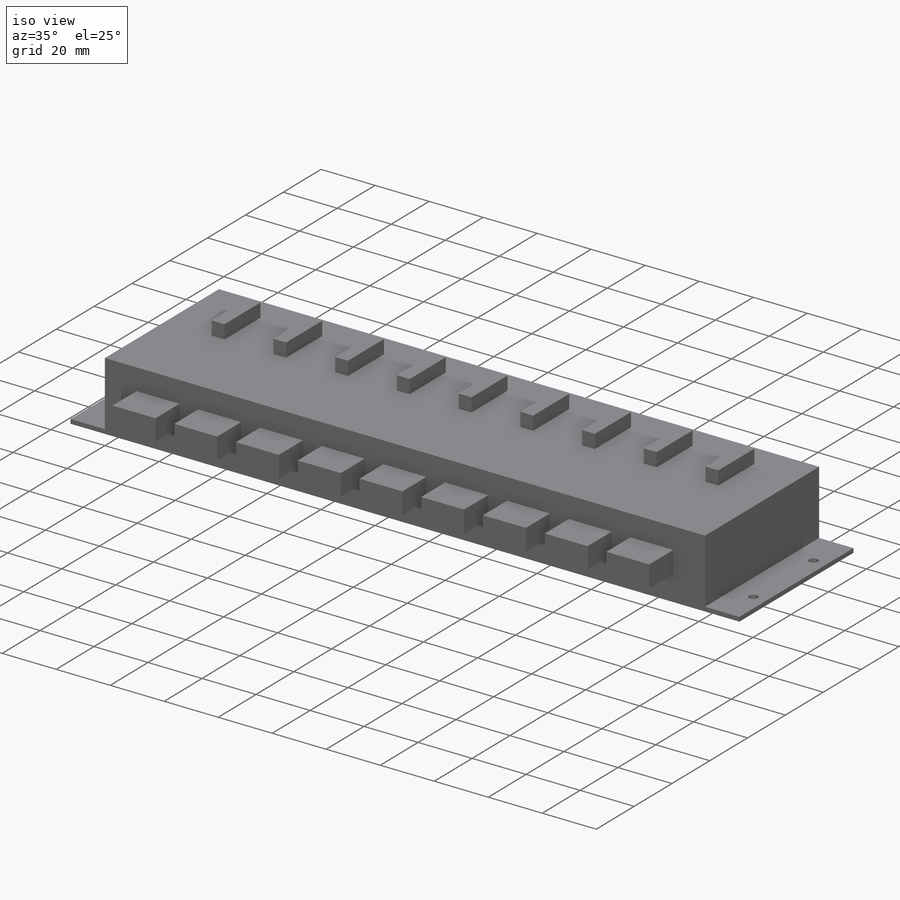
[diagram: iso view]
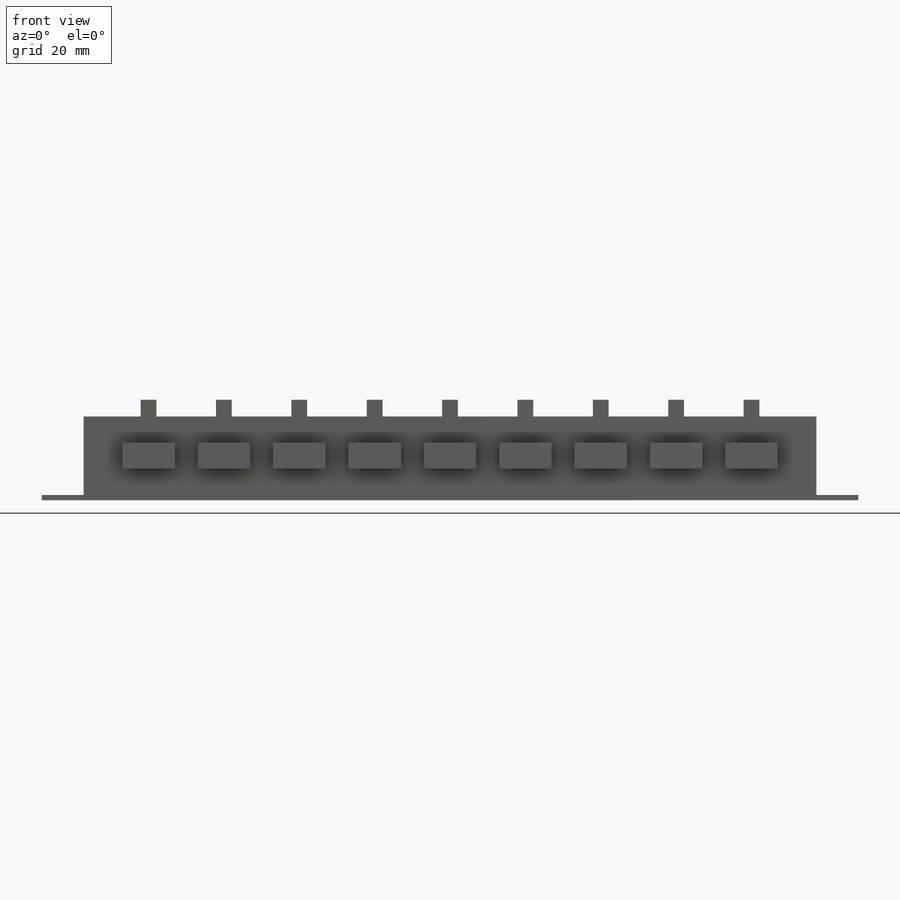
[diagram: front view]
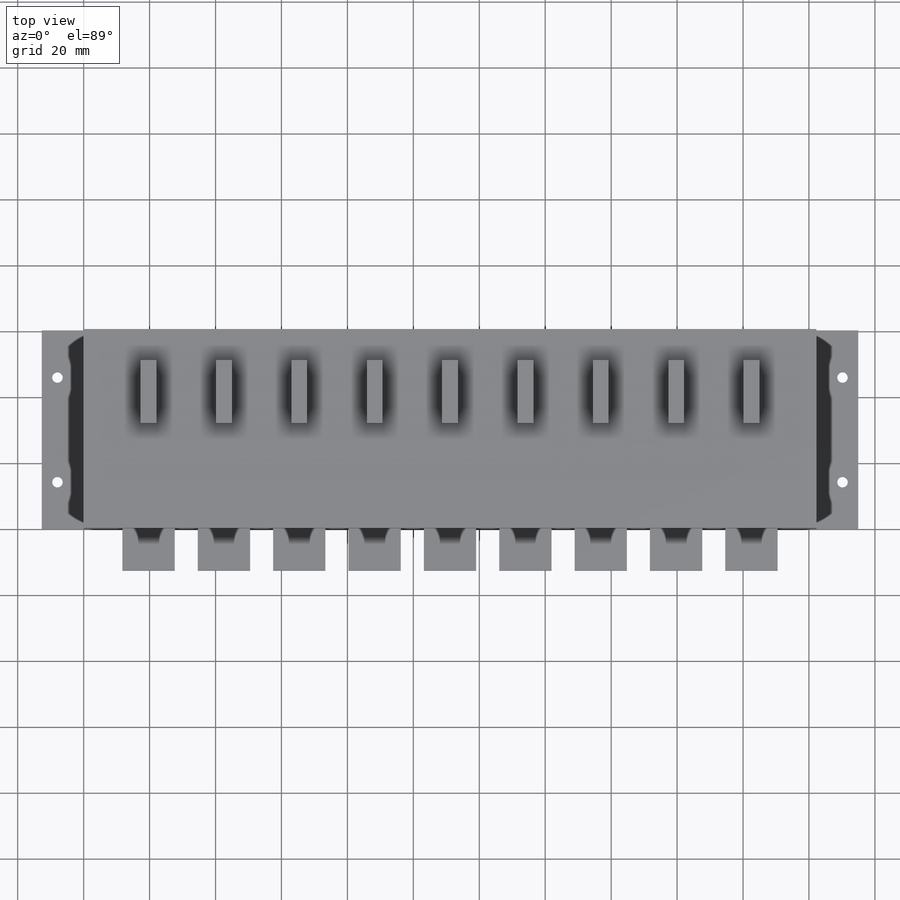
[diagram: top view]
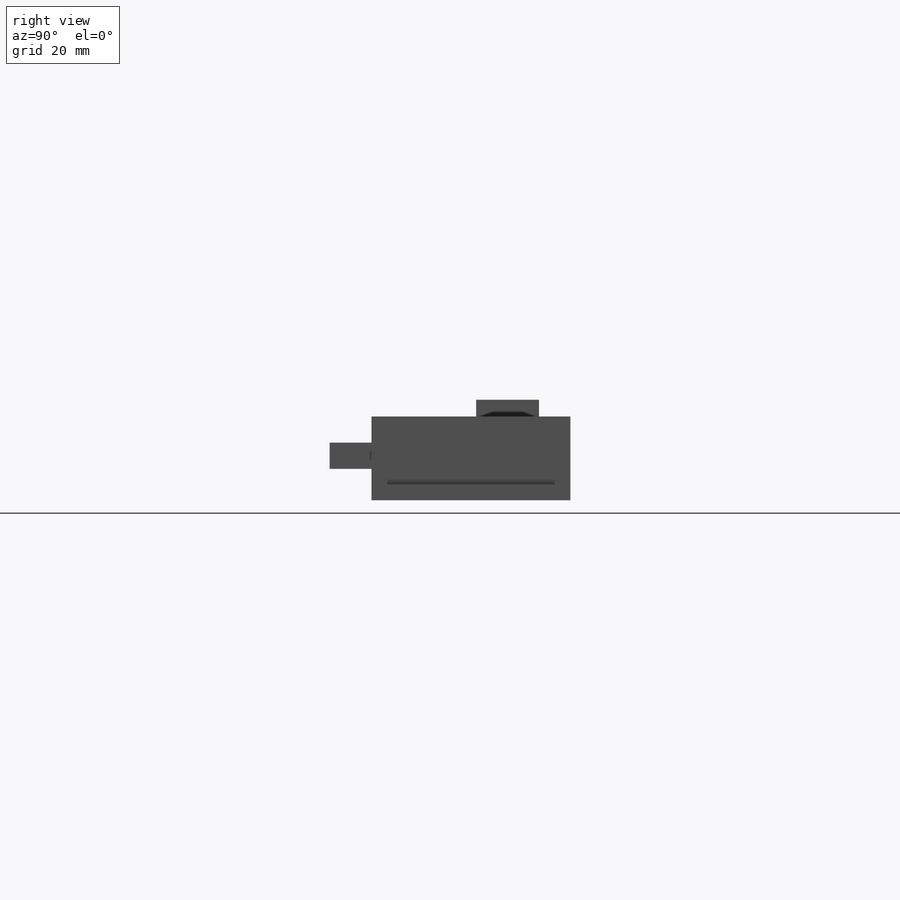
[diagram: right view]
SOLIDWORKS PART (.sldprt)
format: sldprt  version: not decoded by parser v0  size: 263,168 bytes
history: native  units: mm
features: sketch x5, extrude x4, material x1, cut_extrude x1, pattern_linear x1 (+13 scaffold rows collapsed)
feature tree (25):
  scaffold x13  (default folders/planes/origin — collapsed)
  material  "Material <not specified>"
  sketch  "Sketch1"  dims[D1=222.25mm D2=60.325mm]
  extrude  "Boss-Extrude1"  Depth=25.4mm
  sketch  "Sketch2"  dims[D1=247.65mm]
  extrude  "Boss-Extrude2"  Depth=1.5875mm
  sketch  "Sketch3"  dims[D1=3.175mm D2=238.125mm D3=31.75mm]
  cut_extrude  "Cut-Extrude1"  [1 undecoded]
  sketch  "Sketch4"  dims[D1=19.05mm D2=4.7625mm D3=9.525mm]
  extrude  "Boss-Extrude3"  Depth=5.08mm
  sketch  "Sketch5"  dims[D1=7.9375mm D2=15.875mm D3=9.525mm]
  extrude  "Boss-Extrude4"  Depth=12.7mm
  pattern_linear  "LPattern1"  Count1=5 Count2=5 Spacing1=22.86mm Spacing2=22.86mm
decode coverage: 10 of 11 modeling features carry decoded parameters
note: 1 parameter value undecoded
note: suppression state not decoded; provenance and decode notes live in map.json
